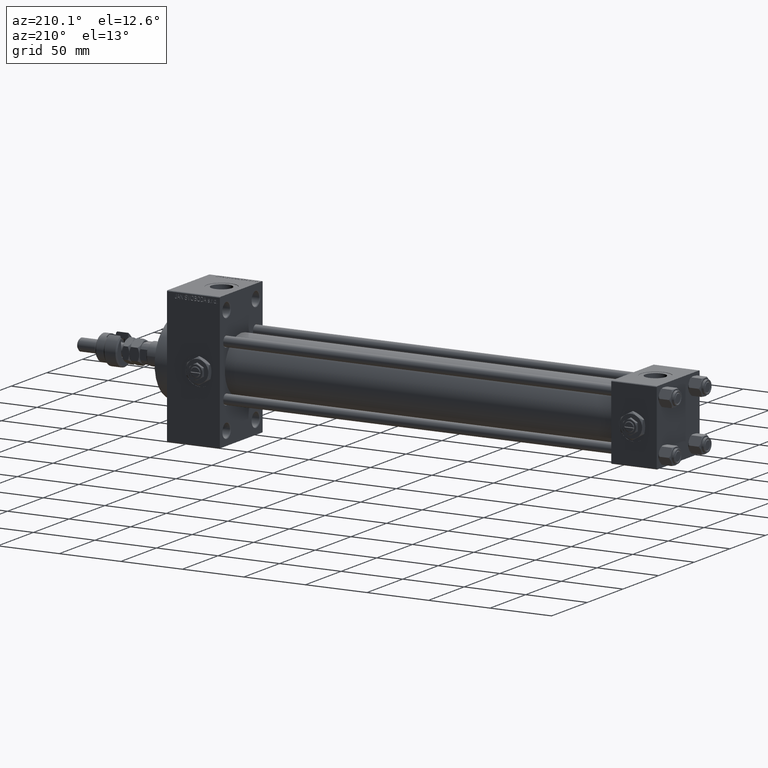
[diagram: clean part render]
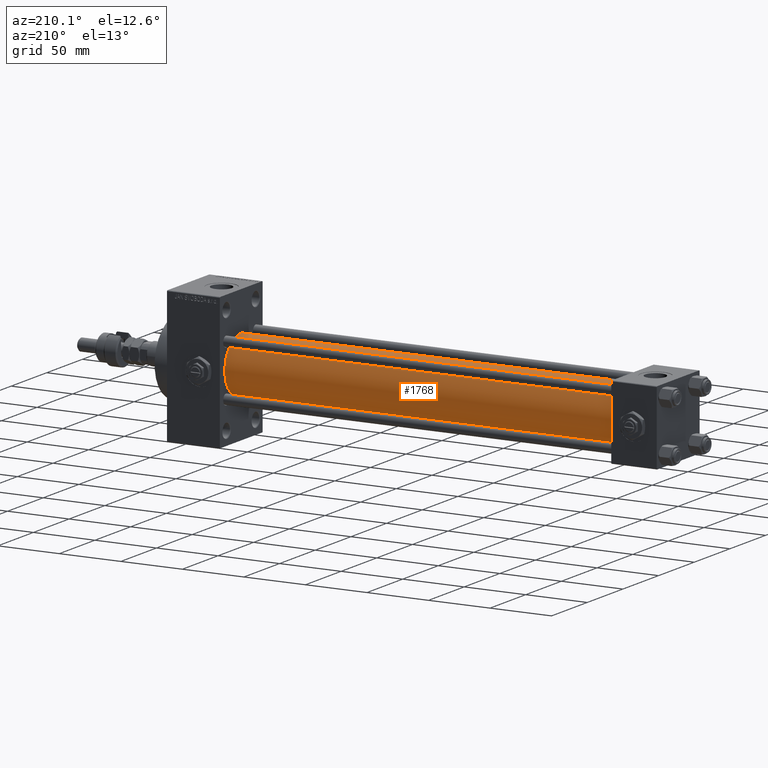
[diagram: same view with one face highlighted and labeled with its STEP entity id]
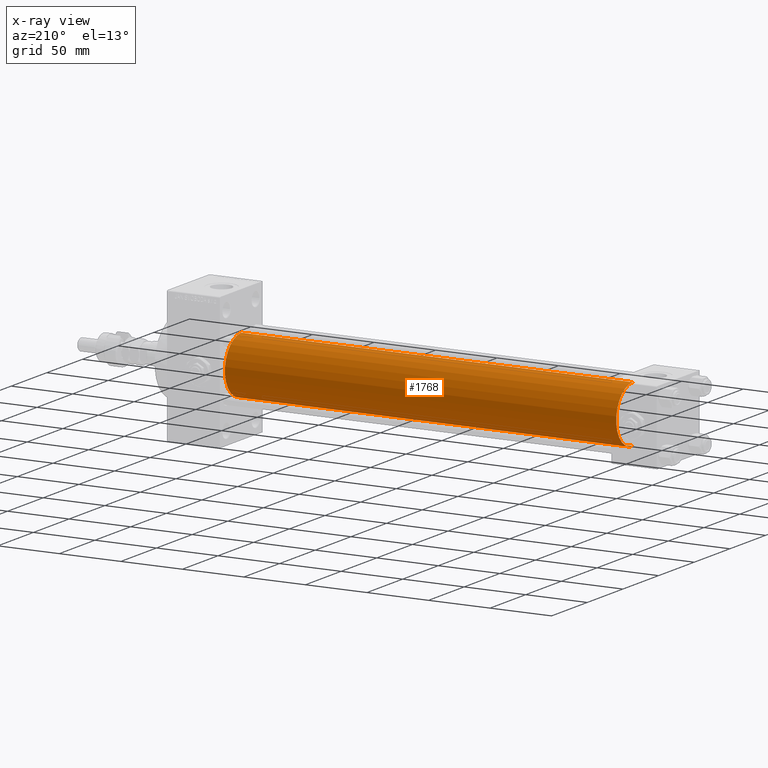
[diagram: x-ray of the same camera — body ghosted, the highlighted face saturated]
A machine part, auxiliary view. The second image highlights one B-rep face of the part: STEP entity #1768.
The next image is the same camera in x-ray: the body ghosted, the highlighted face saturated — about 0% of this face is hidden behind the body in this view.
In plain terms, the highlighted cylindrical surface (edge-blend (fillet) strip) has radius 23 mm, axis along (-1, -0, -0).
Its self-contained STEP definition (entity closure, byte-faithful):
#1684 = EDGE_CURVE ( 'NONE', #6411, #46277, #40632, .T. ) ;
#1768 = ADVANCED_FACE ( 'NONE', ( #42455 ), #9795, .T. ) ;
#1863 = CARTESIAN_POINT ( 'NONE',  ( 36.99999999999997868, -2.602085213965210642E-15, 0.000000000000000000 ) ) ;
#1927 = CARTESIAN_POINT ( 'NONE',  ( 355.0000000000000000, -2.602085213965210642E-15, 0.000000000000000000 ) ) ;
#1940 = ORIENTED_EDGE ( 'NONE', *, *, #45727, .F. ) ;
#2391 = VERTEX_POINT ( 'NONE', #51022 ) ;
#4474 = LINE ( 'NONE', #16592, #9589 ) ;
#6365 = DIRECTION ( 'NONE',  ( -1.000000000000000000, -0.000000000000000000, -0.000000000000000000 ) ) ;
#6411 = VERTEX_POINT ( 'NONE', #34731 ) ;
#8148 = VERTEX_POINT ( 'NONE', #12041 ) ;
#8983 = ORIENTED_EDGE ( 'NONE', *, *, #32435, .F. ) ;
#9589 = VECTOR ( 'NONE', #20557, 1000.000000000000000 ) ;
#9795 = CYLINDRICAL_SURFACE ( 'NONE', #44303, 23.00000000000000000 ) ;
#12041 = CARTESIAN_POINT ( 'NONE',  ( 355.0000000000000000, -2.602085213965210642E-15, 23.00000000000000000 ) ) ;
#14870 = VECTOR ( 'NONE', #20894, 1000.000000000000000 ) ;
#15305 = CARTESIAN_POINT ( 'NONE',  ( 36.99999999999997868, 2.146024240737012665E-16, -23.00000000000000000 ) ) ;
#16140 = CARTESIAN_POINT ( 'NONE',  ( 355.0000000000000000, 2.146024240737012665E-16, -23.00000000000000000 ) ) ;
#16592 = CARTESIAN_POINT ( 'NONE',  ( 355.0000000000000000, -2.602085213965210642E-15, 23.00000000000000000 ) ) ;
#19231 = EDGE_LOOP ( 'NONE', ( #1940, #24143, #33599, #8983 ) ) ;
#20557 = DIRECTION ( 'NONE',  ( -1.000000000000000000, -0.000000000000000000, -0.000000000000000000 ) ) ;
#20894 = DIRECTION ( 'NONE',  ( -1.000000000000000000, -0.000000000000000000, -0.000000000000000000 ) ) ;
#22506 = DIRECTION ( 'NONE',  ( 0.000000000000000000, 0.000000000000000000, -1.000000000000000000 ) ) ;
#24143 = ORIENTED_EDGE ( 'NONE', *, *, #1684, .T. ) ;
#26143 = CARTESIAN_POINT ( 'NONE',  ( 355.0000000000000000, -2.602085213965210642E-15, 0.000000000000000000 ) ) ;
#29015 = AXIS2_PLACEMENT_3D ( 'NONE', #1927, #30136, #22506 ) ;
#30136 = DIRECTION ( 'NONE',  ( 1.000000000000000000, 0.000000000000000000, 0.000000000000000000 ) ) ;
#32435 = EDGE_CURVE ( 'NONE', #8148, #2391, #4474, .T. ) ;
#33599 = ORIENTED_EDGE ( 'NONE', *, *, #40436, .T. ) ;
#33772 = DIRECTION ( 'NONE',  ( 0.000000000000000000, 0.000000000000000000, 1.000000000000000000 ) ) ;
#34030 = DIRECTION ( 'NONE',  ( 1.000000000000000000, -0.000000000000000000, 0.000000000000000000 ) ) ;
#34731 = CARTESIAN_POINT ( 'NONE',  ( 355.0000000000000000, 2.146024240737012665E-16, -23.00000000000000000 ) ) ;
#36399 = CIRCLE ( 'NONE', #37266, 23.00000000000000000 ) ;
#37266 = AXIS2_PLACEMENT_3D ( 'NONE', #1863, #34030, #33772 ) ;
#40436 = EDGE_CURVE ( 'NONE', #46277, #2391, #36399, .T. ) ;
#40632 = LINE ( 'NONE', #16140, #14870 ) ;
#40771 = CIRCLE ( 'NONE', #29015, 23.00000000000000000 ) ;
#42455 = FACE_OUTER_BOUND ( 'NONE', #19231, .T. ) ;
#44303 = AXIS2_PLACEMENT_3D ( 'NONE', #26143, #6365, #49599 ) ;
#45727 = EDGE_CURVE ( 'NONE', #6411, #8148, #40771, .T. ) ;
#46277 = VERTEX_POINT ( 'NONE', #15305 ) ;
#49599 = DIRECTION ( 'NONE',  ( 0.000000000000000000, 0.000000000000000000, 1.000000000000000000 ) ) ;
#51022 = CARTESIAN_POINT ( 'NONE',  ( 36.99999999999997868, -2.602085213965210642E-15, 23.00000000000000000 ) ) ;